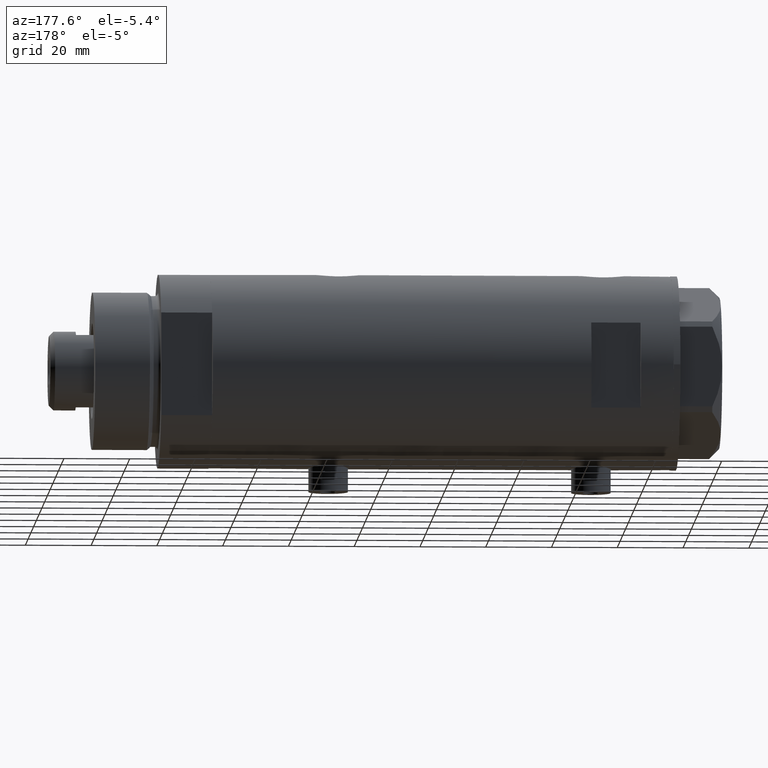
[diagram: clean part render]
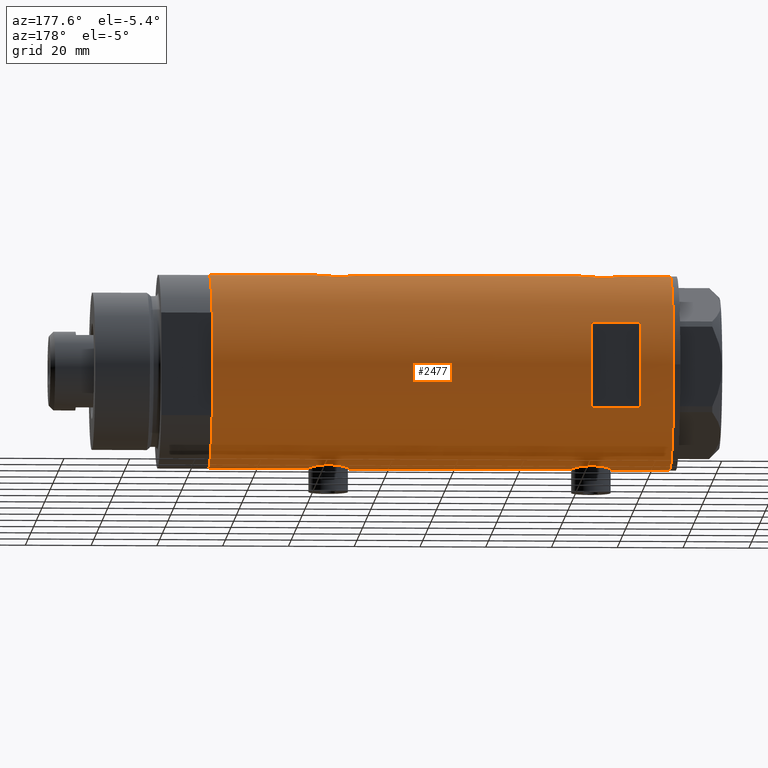
[diagram: same view with one face highlighted and labeled with its STEP entity id]
A machine part, auxiliary view. The second image highlights one B-rep face of the part: STEP entity #2477.
In plain terms, the highlighted cylindrical surface (partial cylindrical patch) has radius 29.5 mm, axis along (-1, -0, 0).
Its self-contained STEP definition (entity closure, byte-faithful):
#12 = EDGE_CURVE ( 'NONE', #271, #3710, #3351, .T. ) ;
#17 = DIRECTION ( 'NONE',  ( 0.000000000000000000, 0.000000000000000000, 1.000000000000000000 ) ) ;
#53 = CARTESIAN_POINT ( 'NONE',  ( -29.49128627113591961, 0.8212788586050381312, 52.30923124908873945 ) ) ;
#67 = CARTESIAN_POINT ( 'NONE',  ( -29.50000000000000355, 3.612708057484692393E-15, -70.09999999999999432 ) ) ;
#85 = CARTESIAN_POINT ( 'NONE',  ( 29.40165444879503909, 2.418426732012822100, 42.49632943565210041 ) ) ;
#119 = CARTESIAN_POINT ( 'NONE',  ( 29.50000000000000355, -1.363453657738827866E-15, 42.09999999999999432 ) ) ;
#120 = CARTESIAN_POINT ( 'NONE',  ( -28.83925158138409017, 6.209208576703539428, -34.62198382868808011 ) ) ;
#130 = CARTESIAN_POINT ( 'NONE',  ( 29.17471722935868428, 4.373569479501278501, 43.50231157590983599 ) ) ;
#140 = CARTESIAN_POINT ( 'NONE',  ( -29.07940225710135351, 4.969011347753392371, -37.61269734470183579 ) ) ;
#166 = CARTESIAN_POINT ( 'NONE',  ( -28.86473101544358144, 6.089252369705489443, -32.37667050833967863 ) ) ;
#180 = VECTOR ( 'NONE', #4048, 1000.000000000000000 ) ;
#200 = CARTESIAN_POINT ( 'NONE',  ( 28.72066933684369516, 6.738715173607846332, -34.22836955953555105 ) ) ;
#226 = CARTESIAN_POINT ( 'NONE',  ( 29.50000000000000000, 0.4977435627019808351, -38.39999999999999147 ) ) ;
#249 = CARTESIAN_POINT ( 'NONE',  ( 28.62953349941190950, 7.116010646391489836, -28.48020539076899027 ) ) ;
#271 = VERTEX_POINT ( 'NONE', #4427 ) ;
#294 = ORIENTED_EDGE ( 'NONE', *, *, #1074, .F. ) ;
#329 = FACE_OUTER_BOUND ( 'NONE', #3006, .T. ) ;
#355 = CARTESIAN_POINT ( 'NONE',  ( -29.12335997091252793, 4.707903814166468415, 50.23078007378799725 ) ) ;
#400 = B_SPLINE_CURVE_WITH_KNOTS ( 'NONE', 3,
 ( #2695, #4158, #3406, #810, #512, #85, #3453, #1264, #4470, #130, #1623, #897, #1899, #2278, #3370, #1543, #2997, #2636, #445, #1919, #942, #2410, #3157, #2746, #1646, #2057, #4633, #4213, #1720, #3477, #4311, #3573, #1390, #2387, #1015, #4588, #4290, #2842, #3504, #2079, #1337, #2028, #3182, #2461, #628, #1368 ),
 .UNSPECIFIED., .F., .F.,
 ( 4, 2, 2, 2, 2, 2, 2, 2, 2, 2, 2, 2, 2, 2, 2, 2, 2, 2, 2, 2, 2, 2, 4 ),
 ( 1.324216582005999085E-18, 0.001471587963626213007, 0.002207381945439318427, 0.002943175927252423846, 0.004414763890878634252, 0.005150557872691738370, 0.005886351854504841621, 0.007357939818131030776, 0.008829527781757219931, 0.009565321763570316244, 0.01030111574538341256, 0.01177270370900960171, 0.01324429167263579260, 0.01471587963626198176, 0.01545167361807507807, 0.01618746759988817091, 0.01692326158170126896, 0.01765905556351436007, 0.01913064352714053881, 0.02060223149076671756, 0.02207381945439289284, 0.02280961343620598047, 0.02354540741801906811 ),
 .UNSPECIFIED. ) ;
#433 = DIRECTION ( 'NONE',  ( 0.000000000000000000, 0.000000000000000000, 1.000000000000000000 ) ) ;
#445 = CARTESIAN_POINT ( 'NONE',  ( 28.63233008736633778, 7.102474189478610533, 47.17814868761112024 ) ) ;
#446 = DIRECTION ( 'NONE',  ( -0.000000000000000000, -0.000000000000000000, 1.000000000000000000 ) ) ;
#462 = LINE ( 'NONE', #67, #4408 ) ;
#494 = CARTESIAN_POINT ( 'NONE',  ( -28.99931529802530150, 5.412890550536860523, -36.93129199055215395 ) ) ;
#509 = VECTOR ( 'NONE', #3872, 1000.000000000000000 ) ;
#512 = CARTESIAN_POINT ( 'NONE',  ( 29.43668864566815913, 1.946133027943908633, 42.35269087298997448 ) ) ;
#517 = CARTESIAN_POINT ( 'NONE',  ( -29.50000000000000355, 3.612706708267620518E-15, 39.84999999999999432 ) ) ;
#519 = CARTESIAN_POINT ( 'NONE',  ( -29.45614208737134021, 1.620034288692375091, -27.76011356088387672 ) ) ;
#539 = CARTESIAN_POINT ( 'NONE',  ( -29.12318177724206336, 4.709191267490243860, 41.97028949758345817 ) ) ;
#542 = CARTESIAN_POINT ( 'NONE',  ( -28.96085629491409108, 5.616414220648534794, -31.02800360409991498 ) ) ;
#569 = CARTESIAN_POINT ( 'NONE',  ( -29.50000000000000711, 0.4142160563134684170, -27.54999999999999716 ) ) ;
#574 = CARTESIAN_POINT ( 'NONE',  ( 28.89325003604223951, 5.958922200807236891, -35.48084786495515175 ) ) ;
#592 = DIRECTION ( 'NONE',  ( -0.000000000000000000, -0.000000000000000000, -1.000000000000000000 ) ) ;
#599 = CARTESIAN_POINT ( 'NONE',  ( 28.89369475765811757, 5.952264974793427754, -26.33049483813752545 ) ) ;
#618 = CARTESIAN_POINT ( 'NONE',  ( 28.80468126786726657, 6.368639251981146998, -26.93139489317929502 ) ) ;
#621 = DIRECTION ( 'NONE',  ( 0.000000000000000000, 0.000000000000000000, 1.000000000000000000 ) ) ;
#628 = CARTESIAN_POINT ( 'NONE',  ( 29.50000000000000711, 0.2453482418156837930, 57.10000000000000853 ) ) ;
#630 = CIRCLE ( 'NONE', #3485, 29.50000000000000355 ) ;
#642 = CARTESIAN_POINT ( 'NONE',  ( 29.14546206473282197, 4.578181670952601756, -24.93943908396707698 ) ) ;
#667 = VERTEX_POINT ( 'NONE', #2614 ) ;
#673 = ORIENTED_EDGE ( 'NONE', *, *, #1363, .F. ) ;
#690 = CARTESIAN_POINT ( 'NONE',  ( -12.96148139681573319, 26.49999999999998934, 60.09999999999998721 ) ) ;
#716 = CARTESIAN_POINT ( 'NONE',  ( -29.37156641804198287, 2.775801885207112019, 51.71472569706632783 ) ) ;
#721 = FACE_BOUND ( 'NONE', #3847, .T. ) ;
#747 = VECTOR ( 'NONE', #1133, 1000.000000000000000 ) ;
#750 = CARTESIAN_POINT ( 'NONE',  ( -29.25454443288369077, 3.812919888526640655, 51.06897379180909979 ) ) ;
#790 = CARTESIAN_POINT ( 'NONE',  ( -28.94521404191311120, 5.694822755760257316, 43.51666953598655141 ) ) ;
#810 = CARTESIAN_POINT ( 'NONE',  ( 29.45150476095192360, 1.707859807438201871, 42.29292881343940280 ) ) ;
#855 = CARTESIAN_POINT ( 'NONE',  ( -29.21045586191521082, 4.133246019522339942, -29.09426098433517893 ) ) ;
#880 = CARTESIAN_POINT ( 'NONE',  ( -29.49128627113591250, 0.8212788586050365769, -27.59076875091126269 ) ) ;
#897 = CARTESIAN_POINT ( 'NONE',  ( 29.08204711695421452, 4.951923910293528408, 43.96183978405700543 ) ) ;
#907 = CARTESIAN_POINT ( 'NONE',  ( -28.87539346372183857, 6.038655803256918198, -32.17547335916925277 ) ) ;
#925 = CARTESIAN_POINT ( 'NONE',  ( 29.50000000000000355, -8.867894669064240341E-21, 57.09999999999999432 ) ) ;
#935 = CARTESIAN_POINT ( 'NONE',  ( 29.50000000000000355, 0.000000000000000000, -70.09999999999999432 ) ) ;
#942 = CARTESIAN_POINT ( 'NONE',  ( 28.58083212642745607, 7.306745240314146628, 47.89046330563792253 ) ) ;
#956 = CARTESIAN_POINT ( 'NONE',  ( -29.49787850362430319, 0.4089683628077628863, -40.04001026437014588 ) ) ;
#960 = CARTESIAN_POINT ( 'NONE',  ( 28.53073993742368941, 7.499791908386146844, -31.39461948433038785 ) ) ;
#968 = VECTOR ( 'NONE', #592, 1000.000000000000000 ) ;
#978 = ORIENTED_EDGE ( 'NONE', *, *, #4094, .F. ) ;
#986 = CARTESIAN_POINT ( 'NONE',  ( 29.50000000000000355, -8.867894669064240341E-21, -23.39999999999999147 ) ) ;
#988 = CARTESIAN_POINT ( 'NONE',  ( 29.50000000000000355, 0.000000000000000000, -70.09999999999999432 ) ) ;
#1005 = CARTESIAN_POINT ( 'NONE',  ( 28.69800960089390074, 6.832546664705481554, -27.79724969708692583 ) ) ;
#1015 = CARTESIAN_POINT ( 'NONE',  ( 28.98787507734748914, 5.475789924529796515, 54.73089043376624119 ) ) ;
#1053 = LINE ( 'NONE', #3889, #968 ) ;
#1074 = EDGE_CURVE ( 'NONE', #1753, #2021, #3007, .T. ) ;
#1090 = DIRECTION ( 'NONE',  ( 1.000000000000000000, 0.000000000000000000, 0.000000000000000000 ) ) ;
#1103 = ORIENTED_EDGE ( 'NONE', *, *, #3862, .T. ) ;
#1109 = VERTEX_POINT ( 'NONE', #925 ) ;
#1111 = CARTESIAN_POINT ( 'NONE',  ( -28.87539346372184568, 6.038655803256916421, 47.72452664083071738 ) ) ;
#1125 = AXIS2_PLACEMENT_3D ( 'NONE', #2735, #4477, #4201 ) ;
#1133 = DIRECTION ( 'NONE',  ( 0.000000000000000000, 0.000000000000000000, 1.000000000000000000 ) ) ;
#1162 = CARTESIAN_POINT ( 'NONE',  ( -28.87327190949137901, 6.049038945481235885, 44.47548271794828167 ) ) ;
#1180 = CARTESIAN_POINT ( 'NONE',  ( -29.07940225710133575, 4.969011347753390595, 42.28730265529815568 ) ) ;
#1183 = VECTOR ( 'NONE', #2589, 1000.000000000000000 ) ;
#1206 = CARTESIAN_POINT ( 'NONE',  ( -29.50000000000000355, 3.612706708236066082E-15, -40.05000000000000426 ) ) ;
#1262 = CARTESIAN_POINT ( 'NONE',  ( 0.000000000000000000, 0.000000000000000000, -70.09999999999999432 ) ) ;
#1264 = CARTESIAN_POINT ( 'NONE',  ( 29.31463363472445849, 3.333180401682678262, 42.86343155316954778 ) ) ;
#1272 = CARTESIAN_POINT ( 'NONE',  ( -29.33379699751449365, 3.132328395749496064, 40.68767835513887121 ) ) ;
#1278 = CARTESIAN_POINT ( 'NONE',  ( -29.41782704931129899, 2.208494778271265169, -27.94961702072823684 ) ) ;
#1299 = CARTESIAN_POINT ( 'NONE',  ( -29.48289442777306490, 1.024392307325222573, 39.93111777471299462 ) ) ;
#1302 = CARTESIAN_POINT ( 'NONE',  ( 29.50000000000000355, 0.000000000000000000, -70.09999999999999432 ) ) ;
#1303 = CARTESIAN_POINT ( 'NONE',  ( -29.01875661852154309, 5.308007315943998883, -37.10588370000889569 ) ) ;
#1305 = CARTESIAN_POINT ( 'NONE',  ( 28.58083212642746318, 7.306745240314148404, -32.60953669436207747 ) ) ;
#1314 = EDGE_CURVE ( 'NONE', #2146, #2333, #1053, .T. ) ;
#1325 = CARTESIAN_POINT ( 'NONE',  ( -29.38727827406289705, 2.583363936682820494, -39.49478026128666386 ) ) ;
#1327 = CARTESIAN_POINT ( 'NONE',  ( 28.95590528945747977, 5.641861744747094676, -25.95235088071115115 ) ) ;
#1337 = CARTESIAN_POINT ( 'NONE',  ( 29.43913092143246146, 1.954882548385549423, 56.85749234733351187 ) ) ;
#1353 = CARTESIAN_POINT ( 'NONE',  ( 29.40165444879503909, 2.418426732012822544, -38.00367056434787116 ) ) ;
#1363 = EDGE_CURVE ( 'NONE', #4060, #4742, #3701, .T. ) ;
#1368 = CARTESIAN_POINT ( 'NONE',  ( 29.50000000000000355, -8.867894669064240341E-21, 57.09999999999999432 ) ) ;
#1382 = CARTESIAN_POINT ( 'NONE',  ( 28.86328010881652872, 6.097564286278116086, -26.52631709077303768 ) ) ;
#1390 = CARTESIAN_POINT ( 'NONE',  ( 28.89369475765811757, 5.952264974793427754, 54.16950516186245324 ) ) ;
#1402 = ORIENTED_EDGE ( 'NONE', *, *, #1802, .T. ) ;
#1427 = VECTOR ( 'NONE', #17, 1000.000000000000000 ) ;
#1440 = LINE ( 'NONE', #3287, #180 ) ;
#1493 = CARTESIAN_POINT ( 'NONE',  ( -12.96148139681573319, 26.49999999999999645, -70.09999999999999432 ) ) ;
#1524 = AXIS2_PLACEMENT_3D ( 'NONE', #1262, #2658, #2676 ) ;
#1528 = CARTESIAN_POINT ( 'NONE',  ( -28.86473101544358855, 6.089252369705490331, 47.52332949166031995 ) ) ;
#1531 = AXIS2_PLACEMENT_3D ( 'NONE', #1882, #433, #1090 ) ;
#1543 = CARTESIAN_POINT ( 'NONE',  ( 28.77473834757381610, 6.507156404236260627, 45.83837315939703672 ) ) ;
#1568 = EDGE_CURVE ( 'NONE', #2837, #4714, #1590, .T. ) ;
#1569 = AXIS2_PLACEMENT_3D ( 'NONE', #3750, #446, #1921 ) ;
#1590 = CIRCLE ( 'NONE', #1524, 29.50000000000000355 ) ;
#1610 = CARTESIAN_POINT ( 'NONE',  ( -28.83028740688047620, 6.250162243045984667, -34.20646065908373146 ) ) ;
#1623 = CARTESIAN_POINT ( 'NONE',  ( 29.14416130131007421, 4.572185141625601190, 43.64974588234441910 ) ) ;
#1632 = CARTESIAN_POINT ( 'NONE',  ( -29.12318177724206336, 4.709191267490246524, -37.92971050241653330 ) ) ;
#1646 = CARTESIAN_POINT ( 'NONE',  ( 28.54372006395177763, 7.450900983269891142, 50.58765735635913785 ) ) ;
#1660 = CARTESIAN_POINT ( 'NONE',  ( -28.91416466586724709, 5.850419487802254181, -31.59172352366371328 ) ) ;
#1662 = CARTESIAN_POINT ( 'NONE',  ( 28.54372006395178119, 7.450900983269892031, -29.91234264364084794 ) ) ;
#1684 = CARTESIAN_POINT ( 'NONE',  ( -29.46640581083893551, 1.421634556901802515, -27.71041108910579354 ) ) ;
#1686 = CARTESIAN_POINT ( 'NONE',  ( 28.54350045195475261, 7.451747857568895128, -31.88266002875499794 ) ) ;
#1702 = CARTESIAN_POINT ( 'NONE',  ( 29.50000000000000355, 0.000000000000000000, 70.09999999999999432 ) ) ;
#1707 = CARTESIAN_POINT ( 'NONE',  ( 29.08308069045668276, 4.954707331652127955, -25.24826371623226962 ) ) ;
#1720 = CARTESIAN_POINT ( 'NONE',  ( 28.72322018454529768, 6.726124749058826957, 52.92706852850999155 ) ) ;
#1747 = CARTESIAN_POINT ( 'NONE',  ( -12.96148139681574030, 26.50000000000000355, 45.09999999999998721 ) ) ;
#1753 = VERTEX_POINT ( 'NONE', #4389 ) ;
#1792 = ORIENTED_EDGE ( 'NONE', *, *, #3389, .T. ) ;
#1802 = EDGE_CURVE ( 'NONE', #4714, #3710, #1440, .T. ) ;
#1807 = ORIENTED_EDGE ( 'NONE', *, *, #1568, .T. ) ;
#1828 = ORIENTED_EDGE ( 'NONE', *, *, #3981, .F. ) ;
#1880 = CARTESIAN_POINT ( 'NONE',  ( -29.50000000000000711, 0.4142160563134682505, 52.34999999999998010 ) ) ;
#1882 = CARTESIAN_POINT ( 'NONE',  ( 0.000000000000000000, 0.000000000000000000, -70.09999999999999432 ) ) ;
#1899 = CARTESIAN_POINT ( 'NONE',  ( 29.05056090758568388, 5.132790299589556682, 44.12608273347915855 ) ) ;
#1919 = CARTESIAN_POINT ( 'NONE',  ( 28.59637095282950625, 7.245897747848926151, 47.64872625722391319 ) ) ;
#1921 = DIRECTION ( 'NONE',  ( -1.000000000000000000, 3.552713678800500535E-15, 0.000000000000000000 ) ) ;
#1939 = VERTEX_POINT ( 'NONE', #1702 ) ;
#1967 = CARTESIAN_POINT ( 'NONE',  ( -29.37021410611213668, 2.770135525807583043, -39.40634069022829067 ) ) ;
#1976 = B_SPLINE_CURVE_WITH_KNOTS ( 'NONE', 3,
 ( #3969, #226, #2779, #2452, #3224, #1353, #2809, #4677, #3915, #2399, #3125, #2116, #3939, #3563, #574, #3867, #200, #4601, #4623, #2070, #1305, #1686, #960, #2090, #1662, #2427, #249, #1005, #3147, #3898, #618, #1382, #599, #1327, #2834, #1707, #642, #4325, #2757, #3169, #4700, #3490, #4224, #4645, #4283, #986 ),
 .UNSPECIFIED., .F., .F.,
 ( 4, 2, 2, 2, 2, 2, 2, 2, 2, 2, 2, 2, 2, 2, 2, 2, 2, 2, 2, 2, 2, 2, 4 ),
 ( 2.009130182846392961E-18, 0.001471587963626178313, 0.002207381945439266819, 0.002943175927252355759, 0.004414763890878538842, 0.005150557872691629950, 0.005886351854504721925, 0.007357939818130915417, 0.008829527781757108909, 0.009565321763570205221, 0.01030111574538330153, 0.01177270370900949416, 0.01324429167263568505, 0.01471587963626187941, 0.01545167361807497398, 0.01618746759988807030, 0.01692326158170116834, 0.01765905556351426292, 0.01913064352714046595, 0.02060223149076666205, 0.02207381945439286508, 0.02280961343620596313, 0.02354540741801906117 ),
 .UNSPECIFIED. ) ;
#1990 = CARTESIAN_POINT ( 'NONE',  ( -29.25454443288368367, 3.812919888526643764, -28.83102620819089168 ) ) ;
#2013 = CARTESIAN_POINT ( 'NONE',  ( -29.48933702067640539, 0.8192029158410158995, -39.99950722266698477 ) ) ;
#2014 = ORIENTED_EDGE ( 'NONE', *, *, #3578, .F. ) ;
#2021 = VERTEX_POINT ( 'NONE', #2609 ) ;
#2028 = CARTESIAN_POINT ( 'NONE',  ( 29.47533087885489067, 1.230190383163956458, 57.00252131767059183 ) ) ;
#2043 = CARTESIAN_POINT ( 'NONE',  ( -28.90008889585329044, 5.919338933253947665, -31.78359792941951056 ) ) ;
#2057 = CARTESIAN_POINT ( 'NONE',  ( 28.59328333056173221, 7.258376466535469085, 51.55124667484830780 ) ) ;
#2070 = CARTESIAN_POINT ( 'NONE',  ( 28.59637095282950270, 7.245897747848926151, -32.85127374277607970 ) ) ;
#2079 = CARTESIAN_POINT ( 'NONE',  ( 29.40387556522357571, 2.422597899785629227, 56.71486039769832388 ) ) ;
#2090 = CARTESIAN_POINT ( 'NONE',  ( 28.53063088452982043, 7.500206755597514707, -30.41171143095193585 ) ) ;
#2097 = VECTOR ( 'NONE', #621, 1000.000000000000000 ) ;
#2116 = CARTESIAN_POINT ( 'NONE',  ( 29.08204711695422517, 4.951923910293530184, -36.53816021594297325 ) ) ;
#2146 = VERTEX_POINT ( 'NONE', #2989 ) ;
#2165 = CYLINDRICAL_SURFACE ( 'NONE', #1531, 29.50000000000000355 ) ;
#2223 = ORIENTED_EDGE ( 'NONE', *, *, #2762, .F. ) ;
#2236 = ORIENTED_EDGE ( 'NONE', *, *, #2455, .F. ) ;
#2237 = CARTESIAN_POINT ( 'NONE',  ( -28.83909818927745050, 6.209925900742495841, 46.91778075451993857 ) ) ;
#2258 = CARTESIAN_POINT ( 'NONE',  ( -28.96258065965880846, 5.606121065329690900, 43.32948014931237424 ) ) ;
#2278 = CARTESIAN_POINT ( 'NONE',  ( 28.95615051861771860, 5.649234316505054032, 44.64284581253273387 ) ) ;
#2302 = CARTESIAN_POINT ( 'NONE',  ( -29.43341305963176424, 2.016871341298207998, 40.17025331001194388 ) ) ;
#2320 = CARTESIAN_POINT ( 'NONE',  ( -29.21113960567726409, 4.128622307952519499, 41.38985466616446018 ) ) ;
#2333 = VERTEX_POINT ( 'NONE', #2456 ) ;
#2346 = CARTESIAN_POINT ( 'NONE',  ( -29.37021410611214023, 2.770135525807581711, 40.49365930977168659 ) ) ;
#2374 = CARTESIAN_POINT ( 'NONE',  ( -28.83035796536222151, 6.249836767212675781, -33.38856505377280826 ) ) ;
#2387 = CARTESIAN_POINT ( 'NONE',  ( 28.95590528945748687, 5.641861744747095564, 54.54764911928883464 ) ) ;
#2399 = CARTESIAN_POINT ( 'NONE',  ( 29.17471722935867717, 4.373569479501276724, -36.99768842409014269 ) ) ;
#2410 = CARTESIAN_POINT ( 'NONE',  ( 28.54350045195475971, 7.451747857568896016, 48.61733997124497364 ) ) ;
#2424 = CARTESIAN_POINT ( 'NONE',  ( -29.37156641804197932, 2.775801885207114239, -28.18527430293367786 ) ) ;
#2427 = CARTESIAN_POINT ( 'NONE',  ( 28.59328333056173221, 7.258376466535469973, -28.94875332515167798 ) ) ;
#2452 = CARTESIAN_POINT ( 'NONE',  ( 29.45150476095191650, 1.707859807438201427, -38.20707118656058299 ) ) ;
#2455 = EDGE_CURVE ( 'NONE', #1109, #1939, #4228, .T. ) ;
#2456 = CARTESIAN_POINT ( 'NONE',  ( 12.96148139681571898, 26.50000000000000355, 45.09999999999998721 ) ) ;
#2461 = CARTESIAN_POINT ( 'NONE',  ( 29.49693976195336020, 0.4910732786937798133, 57.08799094295623178 ) ) ;
#2477 = ADVANCED_FACE ( 'NONE', ( #721, #329 ), #2165, .T. ) ;
#2493 = CARTESIAN_POINT ( 'NONE',  ( -29.50000000000000355, 3.612708057484692393E-15, -70.09999999999999432 ) ) ;
#2522 = ORIENTED_EDGE ( 'NONE', *, *, #12, .F. ) ;
#2549 = CARTESIAN_POINT ( 'NONE',  ( -29.45614208737133310, 1.620034288692374647, 52.13988643911609699 ) ) ;
#2573 = CARTESIAN_POINT ( 'NONE',  ( -29.07990598238133373, 4.966177878631058640, 49.91685031646510140 ) ) ;
#2589 = DIRECTION ( 'NONE',  ( 0.000000000000000000, 0.000000000000000000, 1.000000000000000000 ) ) ;
#2602 = CARTESIAN_POINT ( 'NONE',  ( -29.50000000000000355, -1.251314770453635394E-15, 52.34999999999999432 ) ) ;
#2609 = CARTESIAN_POINT ( 'NONE',  ( -29.50000000000000355, 3.612706708267620518E-15, 39.84999999999999432 ) ) ;
#2614 = CARTESIAN_POINT ( 'NONE',  ( 29.50000000000000355, -2.068661527048439545E-15, -38.39999999999999147 ) ) ;
#2618 = DIRECTION ( 'NONE',  ( -0.000000000000000000, -0.000000000000000000, -1.000000000000000000 ) ) ;
#2623 = CARTESIAN_POINT ( 'NONE',  ( -28.89816269917384517, 5.930588606439749277, 44.08529684457830200 ) ) ;
#2636 = CARTESIAN_POINT ( 'NONE',  ( 28.65280969280606982, 7.019670864411686750, 46.94786831316888964 ) ) ;
#2653 = VERTEX_POINT ( 'NONE', #3196 ) ;
#2658 = DIRECTION ( 'NONE',  ( 0.000000000000000000, 0.000000000000000000, 1.000000000000000000 ) ) ;
#2676 = DIRECTION ( 'NONE',  ( 1.000000000000000000, 0.000000000000000000, 0.000000000000000000 ) ) ;
#2695 = CARTESIAN_POINT ( 'NONE',  ( 29.50000000000000355, -1.363453657738827866E-15, 42.09999999999999432 ) ) ;
#2727 = EDGE_CURVE ( 'NONE', #1939, #3130, #4655, .T. ) ;
#2731 = CARTESIAN_POINT ( 'NONE',  ( -29.12335997091253148, 4.707903814166467527, -29.66921992621196225 ) ) ;
#2735 = CARTESIAN_POINT ( 'NONE',  ( 0.000000000000000000, 0.000000000000000000, 70.09999999999999432 ) ) ;
#2746 = CARTESIAN_POINT ( 'NONE',  ( 28.53063088452982043, 7.500206755597514707, 50.08828856904803928 ) ) ;
#2751 = CARTESIAN_POINT ( 'NONE',  ( -29.48933702067640539, 0.8192029158410143452, 39.90049277733301381 ) ) ;
#2755 = CARTESIAN_POINT ( 'NONE',  ( -29.43341305963175003, 2.016871341298211551, -39.72974668998804759 ) ) ;
#2757 = CARTESIAN_POINT ( 'NONE',  ( 29.31521205951408504, 3.327945423969221217, -24.16093490772910357 ) ) ;
#2762 = EDGE_CURVE ( 'NONE', #667, #2653, #1976, .T. ) ;
#2779 = CARTESIAN_POINT ( 'NONE',  ( 29.48742029994219038, 0.9867701249543442410, -38.35094507494218874 ) ) ;
#2809 = CARTESIAN_POINT ( 'NONE',  ( 29.38138226830143296, 2.652609128011934825, -37.91954601959669446 ) ) ;
#2834 = CARTESIAN_POINT ( 'NONE',  ( 28.98787507734748203, 5.475789924529798292, -25.76910956623374460 ) ) ;
#2837 = VERTEX_POINT ( 'NONE', #1302 ) ;
#2842 = CARTESIAN_POINT ( 'NONE',  ( 29.26131531204081426, 3.767377415172554311, 56.10345302571128201 ) ) ;
#2881 = ORIENTED_EDGE ( 'NONE', *, *, #2727, .F. ) ;
#2930 = CARTESIAN_POINT ( 'NONE',  ( -28.91416466586724354, 5.850419487802253293, 48.30827647633628175 ) ) ;
#2933 = ORIENTED_EDGE ( 'NONE', *, *, #3154, .F. ) ;
#2954 = CARTESIAN_POINT ( 'NONE',  ( -29.33500454540941149, 3.134363790739242095, 51.52262134463679644 ) ) ;
#2989 = CARTESIAN_POINT ( 'NONE',  ( 12.96148139681573319, 26.49999999999998934, 60.09999999999998721 ) ) ;
#2997 = CARTESIAN_POINT ( 'NONE',  ( 28.72066933684370227, 6.738715173607846332, 46.27163044046444185 ) ) ;
#3002 = CARTESIAN_POINT ( 'NONE',  ( -28.99931529802529795, 5.412890550536858747, 42.96870800944780910 ) ) ;
#3006 = EDGE_LOOP ( 'NONE', ( #1807, #1402, #2522, #1792, #294, #1103, #2881, #2236, #1828, #978, #2223, #2014 ) ) ;
#3007 = B_SPLINE_CURVE_WITH_KNOTS ( 'NONE', 3,
 ( #2602, #1880, #53, #4496, #2549, #3352, #4011, #716, #2954, #750, #3663, #355, #2573, #3304, #3688, #2930, #4062, #1111, #1528, #2237, #4038, #4458, #4081, #1162, #2623, #790, #2258, #3002, #4475, #1180, #539, #2320, #4595, #3065, #1272, #2346, #4128, #2302, #3087, #1299, #2751, #3790, #3770, #517 ),
 .UNSPECIFIED., .F., .F.,
 ( 4, 2, 2, 2, 2, 2, 2, 2, 2, 2, 2, 2, 2, 2, 2, 2, 2, 2, 2, 2, 2, 4 ),
 ( 1.215526637565713846E-18, 0.001224749128302325164, 0.001837123692453484711, 0.002449498256604644257, 0.003674247384906971156, 0.004898996513209298923, 0.006123745641511625822, 0.007348494769813952721, 0.007960869333965118338, 0.008573243898116282222, 0.009797993026418609988, 0.01102274215472093775, 0.01224749128302326726, 0.01285986584717442247, 0.01347224041132557767, 0.01469698953962788809, 0.01592173866793019851, 0.01653411323208135372, 0.01714648779623250893, 0.01837123692453480894, 0.01898361148868596068, 0.01959598605283711242 ),
 .UNSPECIFIED. ) ;
#3065 = CARTESIAN_POINT ( 'NONE',  ( -29.31451746246148460, 3.307268797680008365, 40.79285158014994295 ) ) ;
#3068 = CARTESIAN_POINT ( 'NONE',  ( -28.87327190949137901, 6.049038945481233220, -35.42451728205170980 ) ) ;
#3087 = CARTESIAN_POINT ( 'NONE',  ( -29.45783481716065921, 1.627188261681548287, 40.05163589091055343 ) ) ;
#3091 = CARTESIAN_POINT ( 'NONE',  ( -28.96258065965881556, 5.606121065329693565, -36.57051985068761013 ) ) ;
#3122 = CARTESIAN_POINT ( 'NONE',  ( -28.83909818927744695, 6.209925900742495841, -32.98221924548006001 ) ) ;
#3125 = CARTESIAN_POINT ( 'NONE',  ( 29.14416130131008842, 4.572185141625601190, -36.85025411765555958 ) ) ;
#3130 = VERTEX_POINT ( 'NONE', #3722 ) ;
#3144 = CARTESIAN_POINT ( 'NONE',  ( -29.25435602127558354, 3.814249285079243101, -38.76783729533990908 ) ) ;
#3147 = CARTESIAN_POINT ( 'NONE',  ( 28.72322018454529768, 6.726124749058831398, -27.57293147149000490 ) ) ;
#3154 = EDGE_CURVE ( 'NONE', #4742, #2146, #630, .T. ) ;
#3157 = CARTESIAN_POINT ( 'NONE',  ( 28.53073993742368586, 7.499791908386146844, 49.10538051566958018 ) ) ;
#3169 = CARTESIAN_POINT ( 'NONE',  ( 29.40387556522357215, 2.422597899785628339, -23.78513960230166191 ) ) ;
#3182 = CARTESIAN_POINT ( 'NONE',  ( 29.48463566286631377, 0.9832945201638395583, 57.03937451762292454 ) ) ;
#3196 = CARTESIAN_POINT ( 'NONE',  ( 29.50000000000000355, -8.867894669064240341E-21, -23.39999999999999147 ) ) ;
#3223 = EDGE_CURVE ( 'NONE', #2333, #4060, #4087, .T. ) ;
#3224 = CARTESIAN_POINT ( 'NONE',  ( 29.43668864566816623, 1.946133027943908855, -38.14730912701000420 ) ) ;
#3232 = LINE ( 'NONE', #4735, #1427 ) ;
#3234 = CARTESIAN_POINT ( 'NONE',  ( -29.50000000000000355, 3.612708057484692393E-15, -70.09999999999999432 ) ) ;
#3287 = CARTESIAN_POINT ( 'NONE',  ( -29.50000000000000355, 3.612708057484692393E-15, -70.09999999999999432 ) ) ;
#3291 = LINE ( 'NONE', #3234, #1183 ) ;
#3304 = CARTESIAN_POINT ( 'NONE',  ( -28.99817753551063859, 5.423057650933438723, 49.23396151462593195 ) ) ;
#3351 = B_SPLINE_CURVE_WITH_KNOTS ( 'NONE', 3,
 ( #3818, #569, #880, #1684, #519, #4599, #1278, #2424, #4247, #1990, #855, #2731, #4198, #4222, #542, #1660, #2043, #907, #166, #3122, #2374, #1610, #120, #3068, #3793, #3462, #3091, #494, #1303, #140, #1632, #3518, #3144, #4621, #4570, #1967, #1325, #2755, #3840, #4543, #2013, #956, #3487, #3894 ),
 .UNSPECIFIED., .F., .F.,
 ( 4, 2, 2, 2, 2, 2, 2, 2, 2, 2, 2, 2, 2, 2, 2, 2, 2, 2, 2, 2, 2, 4 ),
 ( 7.123987567693931303E-21, 0.001224749128302327550, 0.001837123692453492083, 0.002449498256604656400, 0.003674247384906980697, 0.004898996513209304994, 0.006123745641511629291, 0.007348494769813953588, 0.007960869333965100991, 0.008573243898116250997, 0.009797993026418545803, 0.01102274215472084234, 0.01224749128302314062, 0.01285986584717429930, 0.01347224041132545451, 0.01469698953962778921, 0.01592173866793012219, 0.01653411323208128780, 0.01714648779623245689, 0.01837123692453478466, 0.01898361148868595374, 0.01959598605283711936 ),
 .UNSPECIFIED. ) ;
#3352 = CARTESIAN_POINT ( 'NONE',  ( -29.43187585711095267, 2.013330896687707927, 52.02040860029106994 ) ) ;
#3370 = CARTESIAN_POINT ( 'NONE',  ( 28.89325003604224307, 5.958922200807236891, 45.01915213504484825 ) ) ;
#3389 = EDGE_CURVE ( 'NONE', #271, #2021, #3291, .T. ) ;
#3390 = CARTESIAN_POINT ( 'NONE',  ( 0.000000000000000000, 0.000000000000000000, 60.09999999999998721 ) ) ;
#3406 = CARTESIAN_POINT ( 'NONE',  ( 29.48742029994219038, 0.9867701249543437969, 42.14905492505778994 ) ) ;
#3453 = CARTESIAN_POINT ( 'NONE',  ( 29.38138226830144006, 2.652609128011935269, 42.58045398040328422 ) ) ;
#3462 = CARTESIAN_POINT ( 'NONE',  ( -28.94521404191312186, 5.694822755760260868, -36.38333046401345428 ) ) ;
#3477 = CARTESIAN_POINT ( 'NONE',  ( 28.77649569280673703, 6.494415104660911986, 53.35934988816622848 ) ) ;
#3485 = AXIS2_PLACEMENT_3D ( 'NONE', #3390, #2618, #3785 ) ;
#3487 = CARTESIAN_POINT ( 'NONE',  ( -29.50000000000000355, 0.2042768310961494138, -40.05000000000001137 ) ) ;
#3490 = CARTESIAN_POINT ( 'NONE',  ( 29.47533087885488712, 1.230190383163953571, -23.49747868232938686 ) ) ;
#3504 = CARTESIAN_POINT ( 'NONE',  ( 29.31521205951408859, 3.327945423969223881, 56.33906509227089288 ) ) ;
#3518 = CARTESIAN_POINT ( 'NONE',  ( -29.21113960567727474, 4.128622307952522164, -38.51014533383553129 ) ) ;
#3563 = CARTESIAN_POINT ( 'NONE',  ( 28.95615051861772571, 5.649234316505056697, -35.85715418746725192 ) ) ;
#3573 = CARTESIAN_POINT ( 'NONE',  ( 28.86328010881652872, 6.097564286278109869, 53.97368290922695877 ) ) ;
#3578 = EDGE_CURVE ( 'NONE', #2837, #667, #4285, .T. ) ;
#3633 = ORIENTED_EDGE ( 'NONE', *, *, #3223, .F. ) ;
#3663 = CARTESIAN_POINT ( 'NONE',  ( -29.21045586191521437, 4.133246019522339942, 50.80573901566481965 ) ) ;
#3688 = CARTESIAN_POINT ( 'NONE',  ( -28.96085629491409463, 5.616414220648533018, 48.87199639590006939 ) ) ;
#3701 = LINE ( 'NONE', #1493, #747 ) ;
#3709 = VERTEX_POINT ( 'NONE', #119 ) ;
#3710 = VERTEX_POINT ( 'NONE', #1206 ) ;
#3722 = CARTESIAN_POINT ( 'NONE',  ( -29.50000000000000355, 3.612708057484692393E-15, 70.09999999999999432 ) ) ;
#3750 = CARTESIAN_POINT ( 'NONE',  ( 0.000000000000000000, 0.000000000000000000, 45.09999999999998721 ) ) ;
#3770 = CARTESIAN_POINT ( 'NONE',  ( -29.50000000000000711, 0.2042768310961484424, 39.84999999999999432 ) ) ;
#3785 = DIRECTION ( 'NONE',  ( 1.000000000000000000, -1.776356839400250267E-15, 0.000000000000000000 ) ) ;
#3790 = CARTESIAN_POINT ( 'NONE',  ( -29.49787850362430675, 0.4089683628077635524, 39.85998973562985270 ) ) ;
#3793 = CARTESIAN_POINT ( 'NONE',  ( -28.89816269917384872, 5.930588606439748389, -35.81470315542169658 ) ) ;
#3818 = CARTESIAN_POINT ( 'NONE',  ( -29.50000000000000355, 7.333735512235174214E-18, -27.54999999999999361 ) ) ;
#3840 = CARTESIAN_POINT ( 'NONE',  ( -29.45783481716065211, 1.627188261681552950, -39.84836410908945226 ) ) ;
#3847 = EDGE_LOOP ( 'NONE', ( #3633, #4457, #2933, #673 ) ) ;
#3862 = EDGE_CURVE ( 'NONE', #1753, #3130, #462, .T. ) ;
#3867 = CARTESIAN_POINT ( 'NONE',  ( 28.77473834757382321, 6.507156404236259739, -34.66162684060295618 ) ) ;
#3872 = DIRECTION ( 'NONE',  ( 0.000000000000000000, 0.000000000000000000, 1.000000000000000000 ) ) ;
#3889 = CARTESIAN_POINT ( 'NONE',  ( 12.96148139681573319, 26.49999999999999645, -70.09999999999999432 ) ) ;
#3894 = CARTESIAN_POINT ( 'NONE',  ( -29.50000000000000355, 3.612706708236066082E-15, -40.05000000000000426 ) ) ;
#3898 = CARTESIAN_POINT ( 'NONE',  ( 28.77649569280672992, 6.494415104660919091, -27.14065011183376441 ) ) ;
#3915 = CARTESIAN_POINT ( 'NONE',  ( 29.26187100173484978, 3.763222966830668703, -37.40598258060619230 ) ) ;
#3939 = CARTESIAN_POINT ( 'NONE',  ( 29.05056090758568388, 5.132790299589557570, -36.37391726652082724 ) ) ;
#3969 = CARTESIAN_POINT ( 'NONE',  ( 29.50000000000000355, -2.068661527048439545E-15, -38.39999999999999147 ) ) ;
#3981 = EDGE_CURVE ( 'NONE', #3709, #1109, #400, .T. ) ;
#4011 = CARTESIAN_POINT ( 'NONE',  ( -29.41782704931129899, 2.208494778271261172, 51.95038297927174398 ) ) ;
#4038 = CARTESIAN_POINT ( 'NONE',  ( -28.83035796536222861, 6.249836767212678446, 46.51143494622721164 ) ) ;
#4048 = DIRECTION ( 'NONE',  ( 0.000000000000000000, 0.000000000000000000, 1.000000000000000000 ) ) ;
#4060 = VERTEX_POINT ( 'NONE', #1747 ) ;
#4062 = CARTESIAN_POINT ( 'NONE',  ( -28.90008889585329399, 5.919338933253947665, 48.11640207058049157 ) ) ;
#4081 = CARTESIAN_POINT ( 'NONE',  ( -28.83925158138407951, 6.209208576703536764, 45.27801617131193268 ) ) ;
#4087 = CIRCLE ( 'NONE', #1569, 29.50000000000000355 ) ;
#4094 = EDGE_CURVE ( 'NONE', #2653, #3709, #3232, .T. ) ;
#4128 = CARTESIAN_POINT ( 'NONE',  ( -29.38727827406289705, 2.583363936682818274, 40.40521973871332762 ) ) ;
#4140 = DIRECTION ( 'NONE',  ( 0.000000000000000000, 0.000000000000000000, 1.000000000000000000 ) ) ;
#4158 = CARTESIAN_POINT ( 'NONE',  ( 29.50000000000000711, 0.4977435627019808351, 42.09999999999998721 ) ) ;
#4198 = CARTESIAN_POINT ( 'NONE',  ( -29.07990598238133018, 4.966177878631057752, -29.98314968353490073 ) ) ;
#4201 = DIRECTION ( 'NONE',  ( 1.000000000000000000, 0.000000000000000000, 0.000000000000000000 ) ) ;
#4213 = CARTESIAN_POINT ( 'NONE',  ( 28.69800960089390074, 6.832546664705480666, 52.70275030291305285 ) ) ;
#4222 = CARTESIAN_POINT ( 'NONE',  ( -28.99817753551064570, 5.423057650933437834, -30.66603848537406307 ) ) ;
#4224 = CARTESIAN_POINT ( 'NONE',  ( 29.48463566286630666, 0.9832945201638434440, -23.46062548237705414 ) ) ;
#4228 = LINE ( 'NONE', #935, #509 ) ;
#4247 = CARTESIAN_POINT ( 'NONE',  ( -29.33500454540941149, 3.134363790739243871, -28.37737865536320570 ) ) ;
#4283 = CARTESIAN_POINT ( 'NONE',  ( 29.49999999999999645, 0.2453482418156872069, -23.39999999999998792 ) ) ;
#4285 = LINE ( 'NONE', #988, #2097 ) ;
#4290 = CARTESIAN_POINT ( 'NONE',  ( 29.14546206473282197, 4.578181670952601756, 55.56056091603292657 ) ) ;
#4311 = CARTESIAN_POINT ( 'NONE',  ( 28.80468126786726657, 6.368639251981141669, 53.56860510682070498 ) ) ;
#4325 = CARTESIAN_POINT ( 'NONE',  ( 29.26131531204080360, 3.767377415172554311, -24.39654697428870733 ) ) ;
#4389 = CARTESIAN_POINT ( 'NONE',  ( -29.50000000000000355, -1.251314770453635394E-15, 52.34999999999999432 ) ) ;
#4408 = VECTOR ( 'NONE', #4140, 1000.000000000000000 ) ;
#4427 = CARTESIAN_POINT ( 'NONE',  ( -29.50000000000000355, 7.333735512235174214E-18, -27.54999999999999361 ) ) ;
#4457 = ORIENTED_EDGE ( 'NONE', *, *, #1314, .F. ) ;
#4458 = CARTESIAN_POINT ( 'NONE',  ( -28.83028740688048686, 6.250162243045983779, 45.69353934091627423 ) ) ;
#4470 = CARTESIAN_POINT ( 'NONE',  ( 29.26187100173485334, 3.763222966830669147, 43.09401741939380059 ) ) ;
#4475 = CARTESIAN_POINT ( 'NONE',  ( -29.01875661852154664, 5.308007315943999771, 42.79411629999108158 ) ) ;
#4477 = DIRECTION ( 'NONE',  ( 0.000000000000000000, 0.000000000000000000, 1.000000000000000000 ) ) ;
#4496 = CARTESIAN_POINT ( 'NONE',  ( -29.46640581083894617, 1.421634556901803403, 52.18958891089418017 ) ) ;
#4543 = CARTESIAN_POINT ( 'NONE',  ( -29.48289442777306490, 1.024392307325225904, -39.96888222528700396 ) ) ;
#4570 = CARTESIAN_POINT ( 'NONE',  ( -29.33379699751450431, 3.132328395749495620, -39.21232164486112026 ) ) ;
#4588 = CARTESIAN_POINT ( 'NONE',  ( 29.08308069045668631, 4.954707331652121738, 55.25173628376772683 ) ) ;
#4595 = CARTESIAN_POINT ( 'NONE',  ( -29.25435602127557999, 3.814249285079248430, 41.13216270466008950 ) ) ;
#4599 = CARTESIAN_POINT ( 'NONE',  ( -29.43187585711095267, 2.013330896687707927, -27.87959139970892508 ) ) ;
#4601 = CARTESIAN_POINT ( 'NONE',  ( 28.65280969280606982, 7.019670864411682309, -33.55213168683108904 ) ) ;
#4621 = CARTESIAN_POINT ( 'NONE',  ( -29.31451746246149526, 3.307268797680004369, -39.10714841985004142 ) ) ;
#4623 = CARTESIAN_POINT ( 'NONE',  ( 28.63233008736633778, 7.102474189478609645, -33.32185131238886555 ) ) ;
#4633 = CARTESIAN_POINT ( 'NONE',  ( 28.62953349941190240, 7.116010646391488947, 52.01979460923099197 ) ) ;
#4645 = CARTESIAN_POINT ( 'NONE',  ( 29.49693976195335310, 0.4910732786937820893, -23.41200905704375046 ) ) ;
#4655 = CIRCLE ( 'NONE', #1125, 29.50000000000000355 ) ;
#4677 = CARTESIAN_POINT ( 'NONE',  ( 29.31463363472446204, 3.333180401682677374, -37.63656844683045222 ) ) ;
#4700 = CARTESIAN_POINT ( 'NONE',  ( 29.43913092143246857, 1.954882548385551644, -23.64250765266648102 ) ) ;
#4714 = VERTEX_POINT ( 'NONE', #2493 ) ;
#4735 = CARTESIAN_POINT ( 'NONE',  ( 29.50000000000000355, 0.000000000000000000, -70.09999999999999432 ) ) ;
#4742 = VERTEX_POINT ( 'NONE', #690 ) ;